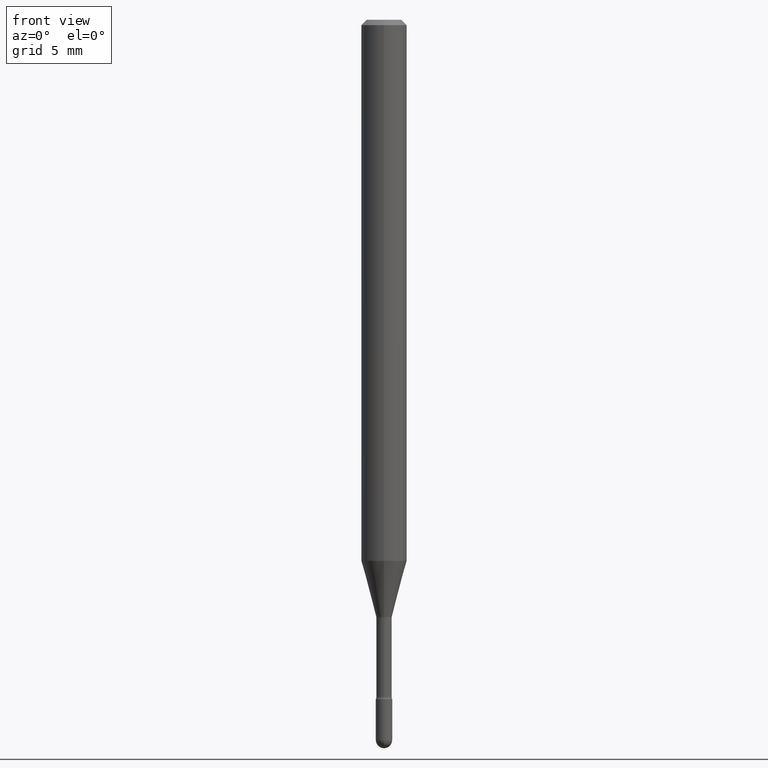
[diagram: clean part render]
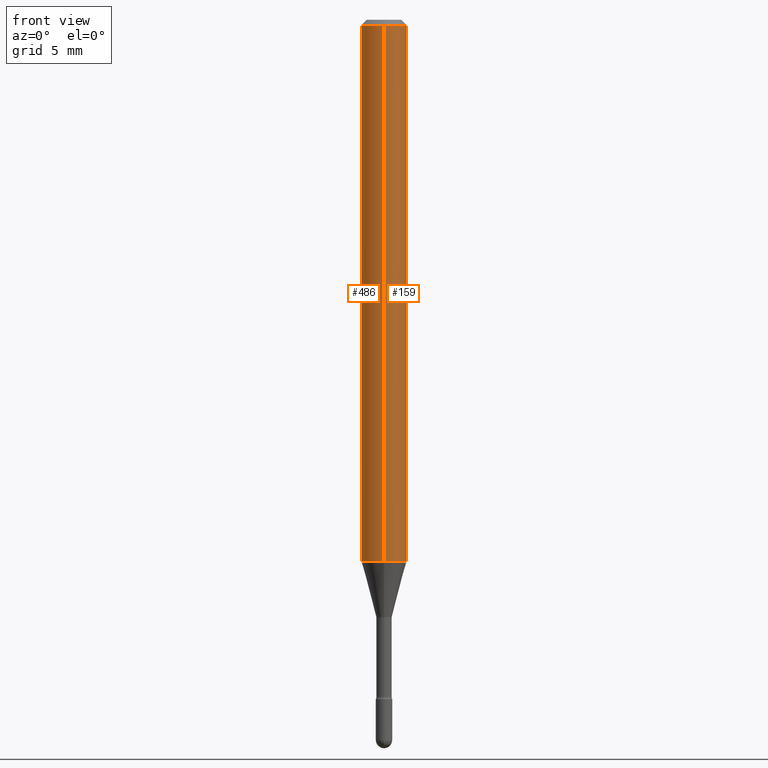
[diagram: same view with one multi-face feature highlighted, each face labeled with its STEP entity id]
A machine part, front view. The highlighted faces form ONE feature: a constant-radius fillet chain: 2 tangent blend faces with common blend radius 1.5875 mm. The faces share edges in the B-rep.
Their STEP definitions:
[1] entity #486 (Cylinder):
#2 = VERTEX_POINT ( 'NONE', #272 ) ;
#28 = DIRECTION ( 'NONE',  ( -6.982962677686265922E-15, -1.000000000000000000, 3.491510544755857914E-15 ) ) ;
#32 = EDGE_CURVE ( 'NONE', #122, #2, #284, .T. ) ;
#58 = DIRECTION ( 'NONE',  ( -2.445448411805292679E-29, 3.491510544755857519E-15, 1.000000000000000000 ) ) ;
#69 = DIRECTION ( 'NONE',  ( -2.445448411805292679E-29, 3.491510544755857914E-15, 1.000000000000000000 ) ) ;
#70 = CARTESIAN_POINT ( 'NONE',  ( 4.440892098500987066E-16, 0.06249999999999478889, -1.485679699107027352 ) ) ;
#72 = DIRECTION ( 'NONE',  ( -2.445448411805292679E-29, 3.491510544755857914E-15, 1.000000000000000000 ) ) ;
#93 = CARTESIAN_POINT ( 'NONE',  ( -4.364351673553912750E-16, -0.06250000000000005551, -0.01499999999999986587 ) ) ;
#104 = CARTESIAN_POINT ( 'NONE',  ( 3.668172617707959513E-31, -5.237265817133816108E-17, -0.01500000000000008271 ) ) ;
#111 = DIRECTION ( 'NONE',  ( -2.445448411805292679E-29, 3.491510544755857914E-15, 1.000000000000000000 ) ) ;
#117 = ORIENTED_EDGE ( 'NONE', *, *, #32, .F. ) ;
#122 = VERTEX_POINT ( 'NONE', #70 ) ;
#126 = EDGE_CURVE ( 'NONE', #2, #377, #362, .T. ) ;
#137 = VECTOR ( 'NONE', #501, 39.37007874015748143 ) ;
#147 = CARTESIAN_POINT ( 'NONE',  ( 3.633153060632644623E-29, -5.187266335561894822E-15, -1.485679699107027130 ) ) ;
#149 = DIRECTION ( 'NONE',  ( -6.982962677686265922E-15, -1.000000000000000000, 3.483106191921935554E-15 ) ) ;
#215 = ORIENTED_EDGE ( 'NONE', *, *, #541, .T. ) ;
#233 = CARTESIAN_POINT ( 'NONE',  ( 4.440892098500625669E-16, 0.06250000000000000000, 2.598539898440049683E-16 ) ) ;
#234 = AXIS2_PLACEMENT_3D ( 'NONE', #147, #72, #418 ) ;
#236 = AXIS2_PLACEMENT_3D ( 'NONE', #104, #111, #149 ) ;
#271 = CARTESIAN_POINT ( 'NONE',  ( -1.169113584055446105E-44, 1.669184350826100908E-30, 4.780733988912460139E-16 ) ) ;
#272 = CARTESIAN_POINT ( 'NONE',  ( 4.440892098500991996E-16, 0.06249999999999995143, -0.01500000000000030129 ) ) ;
#284 = LINE ( 'NONE', #233, #467 ) ;
#332 = CIRCLE ( 'NONE', #234, 0.06250000000000000000 ) ;
#342 = AXIS2_PLACEMENT_3D ( 'NONE', #271, #69, #28 ) ;
#362 = CIRCLE ( 'NONE', #236, 0.06250000000000000000 ) ;
#377 = VERTEX_POINT ( 'NONE', #93 ) ;
#418 = DIRECTION ( 'NONE',  ( -6.982962677686265922E-15, -1.000000000000000000, 4.370956789862821150E-15 ) ) ;
#420 = ORIENTED_EDGE ( 'NONE', *, *, #479, .T. ) ;
#453 = CYLINDRICAL_SURFACE ( 'NONE', #342, 0.06250000000000000000 ) ;
#461 = FACE_OUTER_BOUND ( 'NONE', #528, .T. ) ;
#467 = VECTOR ( 'NONE', #58, 39.37007874015748143 ) ;
#479 = EDGE_CURVE ( 'NONE', #559, #377, #507, .T. ) ;
#486 = ADVANCED_FACE ( 'NONE', ( #461 ), #453, .T. ) ;
#487 = CARTESIAN_POINT ( 'NONE',  ( -4.364351673553553818E-16, -0.06250000000000520417, -1.485679699107026686 ) ) ;
#501 = DIRECTION ( 'NONE',  ( -2.445448411805292679E-29, 3.491510544755857519E-15, 1.000000000000000000 ) ) ;
#507 = LINE ( 'NONE', #549, #137 ) ;
#528 = EDGE_LOOP ( 'NONE', ( #117, #215, #420, #540 ) ) ;
#540 = ORIENTED_EDGE ( 'NONE', *, *, #126, .F. ) ;
#541 = EDGE_CURVE ( 'NONE', #122, #559, #332, .T. ) ;
#549 = CARTESIAN_POINT ( 'NONE',  ( -4.364351673553916201E-16, -0.06250000000000000000, 6.962928079384871582E-16 ) ) ;
#559 = VERTEX_POINT ( 'NONE', #487 ) ;
[2] entity #159 (Cylinder):
#2 = VERTEX_POINT ( 'NONE', #272 ) ;
#32 = EDGE_CURVE ( 'NONE', #122, #2, #284, .T. ) ;
#58 = DIRECTION ( 'NONE',  ( -2.445448411805292679E-29, 3.491510544755857519E-15, 1.000000000000000000 ) ) ;
#70 = CARTESIAN_POINT ( 'NONE',  ( 4.440892098500987066E-16, 0.06249999999999478889, -1.485679699107027352 ) ) ;
#93 = CARTESIAN_POINT ( 'NONE',  ( -4.364351673553912750E-16, -0.06250000000000005551, -0.01499999999999986587 ) ) ;
#122 = VERTEX_POINT ( 'NONE', #70 ) ;
#128 = DIRECTION ( 'NONE',  ( -6.982962677686265922E-15, -1.000000000000000000, 3.491510544755857914E-15 ) ) ;
#137 = VECTOR ( 'NONE', #501, 39.37007874015748143 ) ;
#139 = CIRCLE ( 'NONE', #257, 0.06250000000000000000 ) ;
#159 = ADVANCED_FACE ( 'NONE', ( #425 ), #520, .T. ) ;
#161 = DIRECTION ( 'NONE',  ( -6.982962677686265922E-15, -1.000000000000000000, 3.483106191921935554E-15 ) ) ;
#194 = CARTESIAN_POINT ( 'NONE',  ( 3.668172617707959513E-31, -5.237265817133816108E-17, -0.01500000000000008271 ) ) ;
#229 = DIRECTION ( 'NONE',  ( -2.445448411805292679E-29, 3.491510544755857914E-15, 1.000000000000000000 ) ) ;
#233 = CARTESIAN_POINT ( 'NONE',  ( 4.440892098500625669E-16, 0.06250000000000000000, 2.598539898440049683E-16 ) ) ;
#257 = AXIS2_PLACEMENT_3D ( 'NONE', #312, #229, #356 ) ;
#263 = ORIENTED_EDGE ( 'NONE', *, *, #479, .F. ) ;
#272 = CARTESIAN_POINT ( 'NONE',  ( 4.440892098500991996E-16, 0.06249999999999995143, -0.01500000000000030129 ) ) ;
#283 = ORIENTED_EDGE ( 'NONE', *, *, #32, .T. ) ;
#284 = LINE ( 'NONE', #233, #467 ) ;
#301 = DIRECTION ( 'NONE',  ( -2.445448411805292679E-29, 3.491510544755857914E-15, 1.000000000000000000 ) ) ;
#312 = CARTESIAN_POINT ( 'NONE',  ( 3.633153060632644623E-29, -5.187266335561894822E-15, -1.485679699107027130 ) ) ;
#331 = AXIS2_PLACEMENT_3D ( 'NONE', #341, #301, #128 ) ;
#341 = CARTESIAN_POINT ( 'NONE',  ( -1.169113584055446105E-44, 1.669184350826100908E-30, 4.780733988912460139E-16 ) ) ;
#356 = DIRECTION ( 'NONE',  ( -6.982962677686265922E-15, -1.000000000000000000, 4.370956789862821150E-15 ) ) ;
#359 = DIRECTION ( 'NONE',  ( -2.445448411805292679E-29, 3.491510544755857914E-15, 1.000000000000000000 ) ) ;
#377 = VERTEX_POINT ( 'NONE', #93 ) ;
#386 = EDGE_CURVE ( 'NONE', #559, #122, #139, .T. ) ;
#391 = ORIENTED_EDGE ( 'NONE', *, *, #386, .T. ) ;
#425 = FACE_OUTER_BOUND ( 'NONE', #543, .T. ) ;
#436 = CIRCLE ( 'NONE', #505, 0.06250000000000000000 ) ;
#467 = VECTOR ( 'NONE', #58, 39.37007874015748143 ) ;
#479 = EDGE_CURVE ( 'NONE', #559, #377, #507, .T. ) ;
#487 = CARTESIAN_POINT ( 'NONE',  ( -4.364351673553553818E-16, -0.06250000000000520417, -1.485679699107026686 ) ) ;
#501 = DIRECTION ( 'NONE',  ( -2.445448411805292679E-29, 3.491510544755857519E-15, 1.000000000000000000 ) ) ;
#505 = AXIS2_PLACEMENT_3D ( 'NONE', #194, #359, #161 ) ;
#507 = LINE ( 'NONE', #549, #137 ) ;
#509 = ORIENTED_EDGE ( 'NONE', *, *, #524, .F. ) ;
#520 = CYLINDRICAL_SURFACE ( 'NONE', #331, 0.06250000000000000000 ) ;
#524 = EDGE_CURVE ( 'NONE', #377, #2, #436, .T. ) ;
#543 = EDGE_LOOP ( 'NONE', ( #391, #283, #509, #263 ) ) ;
#549 = CARTESIAN_POINT ( 'NONE',  ( -4.364351673553916201E-16, -0.06250000000000000000, 6.962928079384871582E-16 ) ) ;
#559 = VERTEX_POINT ( 'NONE', #487 ) ;